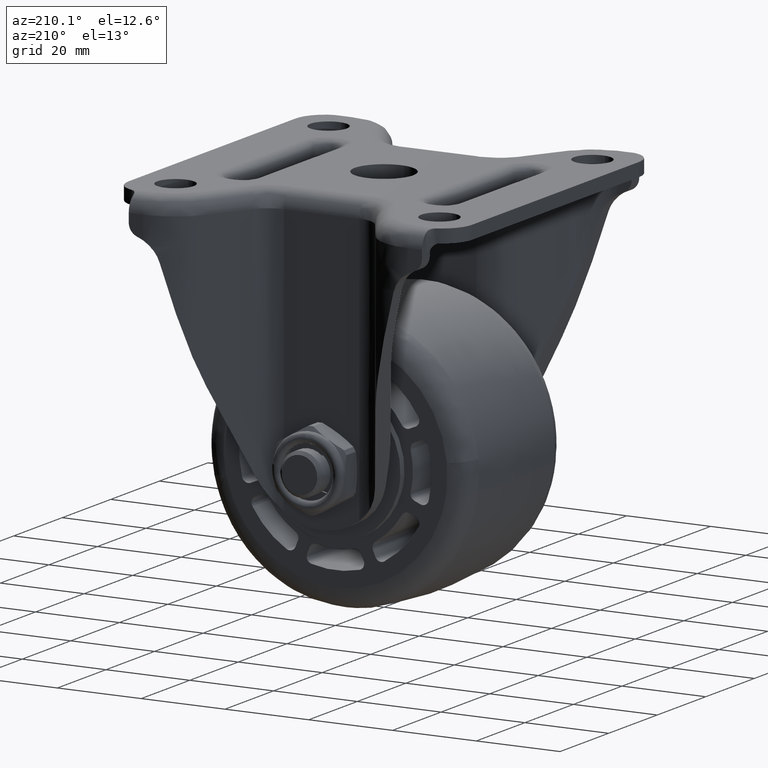
[diagram: clean part render]
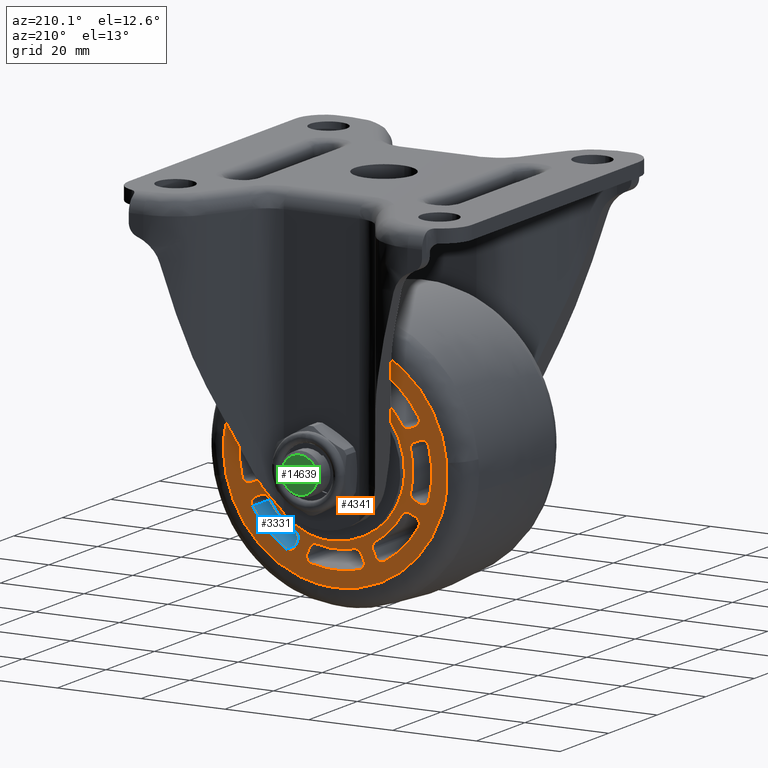
[diagram: same view with three faces highlighted in distinct colors, each labeled with its STEP entity id]
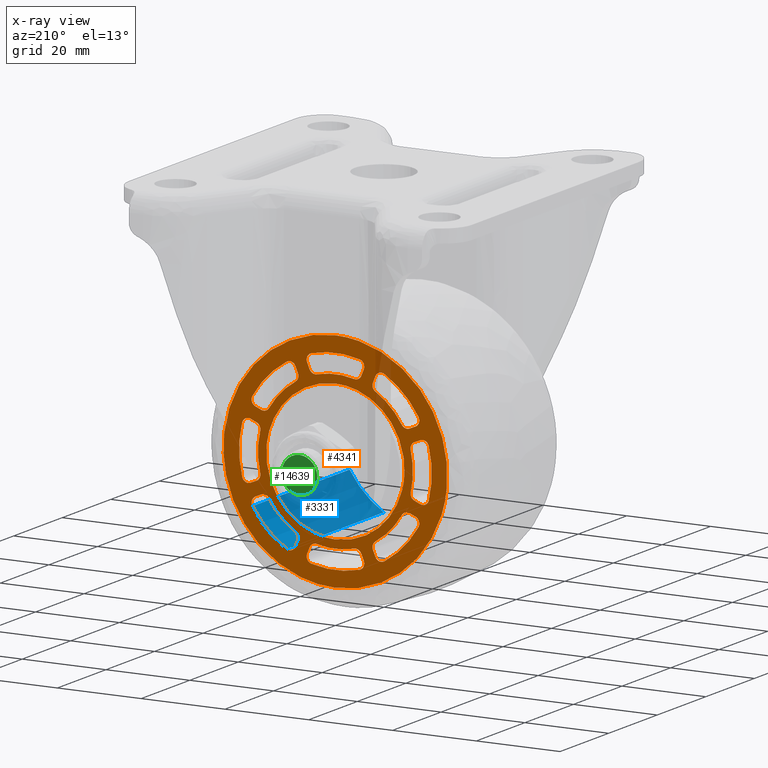
[diagram: x-ray of the same camera — body ghosted, the three highlighted faces saturated]
A machine part, auxiliary view with three faces highlighted in distinct colors.
The next image is the same camera in x-ray (body ghosted, the three faces saturated) — at least one of them is partly hidden behind the body in this view.
Their STEP definitions:

[orange] entity #4341 — the highlighted face is a freeform B-spline surface patch.
#271=CARTESIAN_POINT('',(16.384660335961740,20.0,-55.552461637232980));
#272=VERTEX_POINT('',#271);
#278=CARTESIAN_POINT('',(0.0,20.0,-74.000000000000014));
#279=VERTEX_POINT('',#278);
#280=CARTESIAN_POINT('',(16.384660335961744,20.000000000000004,-55.552461637232980));
#281=CARTESIAN_POINT('',(16.500000000000000,20.000000000000007,-56.522815420400264));
#282=CARTESIAN_POINT('',(16.500000000000000,20.0,-57.500000000000000));
#283=CARTESIAN_POINT('',(16.499999999999993,19.999999999999996,-74.000000000000014));
#284=CARTESIAN_POINT('',(0.0,20.0,-74.000000000000014));
#292=(BOUNDED_CURVE()B_SPLINE_CURVE(2,(#280,#281,#282,#283,#284),.UNSPECIFIED.,.F.,.U.)B_SPLINE_CURVE_WITH_KNOTS((3,2,3),(0.229562746949458,0.250000000000000,0.500000000000000),.UNSPECIFIED.)CURVE()GEOMETRIC_REPRESENTATION_ITEM()RATIONAL_B_SPLINE_CURVE((0.956027290130051,0.976056268681287,1.0,0.707106781186548,1.0))REPRESENTATION_ITEM(''));
#293=EDGE_CURVE('',#272,#279,#292,.T.);
#295=CARTESIAN_POINT('',(-16.469224859211689,20.0,-58.507289698447082));
#296=VERTEX_POINT('',#295);
#297=CARTESIAN_POINT('',(0.0,20.0,-74.000000000000014));
#298=CARTESIAN_POINT('',(-15.521660682930037,20.0,-74.0));
#299=CARTESIAN_POINT('',(-16.469224859211689,20.000000000000004,-58.507289698447067));
#307=(BOUNDED_CURVE()B_SPLINE_CURVE(2,(#297,#298,#299),.UNSPECIFIED.,.F.,.U.)B_SPLINE_CURVE_WITH_KNOTS((3,3),(0.500000000000000,0.739333079624144),.UNSPECIFIED.)CURVE()GEOMETRIC_REPRESENTATION_ITEM()RATIONAL_B_SPLINE_CURVE((1.0,0.719603855761393,0.976072293245677))REPRESENTATION_ITEM(''));
#308=EDGE_CURVE('',#279,#296,#307,.T.);
#386=CARTESIAN_POINT('',(0.0,20.0,-41.0));
#387=VERTEX_POINT('',#386);
#388=CARTESIAN_POINT('',(-16.469224859211689,20.000000000000004,-58.507289698447067));
#389=CARTESIAN_POINT('',(-16.500000000000000,20.0,-58.004114976780698));
#390=CARTESIAN_POINT('',(-16.500000000000000,20.0,-57.500000000000000));
#391=CARTESIAN_POINT('',(-16.499999999999993,19.999999999999996,-41.0));
#392=CARTESIAN_POINT('',(0.0,20.0,-41.0));
#400=(BOUNDED_CURVE()B_SPLINE_CURVE(2,(#388,#389,#390,#391,#392),.UNSPECIFIED.,.F.,.U.)B_SPLINE_CURVE_WITH_KNOTS((3,2,3),(0.739333079624144,0.750000000000000,1.0),.UNSPECIFIED.)CURVE()GEOMETRIC_REPRESENTATION_ITEM()RATIONAL_B_SPLINE_CURVE((0.976072293245677,0.987502925425155,1.0,0.707106781186548,1.0))REPRESENTATION_ITEM(''));
#401=EDGE_CURVE('',#296,#387,#400,.T.);
#403=CARTESIAN_POINT('',(0.0,20.0,-41.0));
#404=CARTESIAN_POINT('',(14.654903555551396,20.0,-41.0));
#405=CARTESIAN_POINT('',(16.384660335961748,19.999999999999996,-55.552461637232980));
#413=(BOUNDED_CURVE()B_SPLINE_CURVE(2,(#403,#404,#405),.UNSPECIFIED.,.F.,.U.)B_SPLINE_CURVE_WITH_KNOTS((3,3),(0.0,0.229562746949458),.UNSPECIFIED.)CURVE()GEOMETRIC_REPRESENTATION_ITEM()RATIONAL_B_SPLINE_CURVE((1.0,0.731050512505261,0.956027290130051))REPRESENTATION_ITEM(''));
#414=EDGE_CURVE('',#387,#272,#413,.T.);
#633=CARTESIAN_POINT('',(26.099642444681489,20.0,-63.233795155336438));
#634=VERTEX_POINT('',#633);
#635=CARTESIAN_POINT('',(0.0,20.0,-84.222046000000248));
#636=VERTEX_POINT('',#635);
#637=CARTESIAN_POINT('',(26.099642444681489,20.000000000000007,-63.233795155336445));
#638=CARTESIAN_POINT('',(21.488761993979644,20.000000000000007,-84.222046000000248));
#639=CARTESIAN_POINT('',(0.0,20.0,-84.222046000000248));
#647=(BOUNDED_CURVE()B_SPLINE_CURVE(2,(#637,#638,#639),.UNSPECIFIED.,.F.,.U.)B_SPLINE_CURVE_WITH_KNOTS((3,3),(0.286726879782087,0.500000000000000),.UNSPECIFIED.)CURVE()GEOMETRIC_REPRESENTATION_ITEM()RATIONAL_B_SPLINE_CURVE((0.926585904682078,0.750134997331948,1.0))REPRESENTATION_ITEM(''));
#648=EDGE_CURVE('',#634,#636,#647,.T.);
#712=CARTESIAN_POINT('',(-26.587126847215149,20.0,-54.818129638321437));
#713=VERTEX_POINT('',#712);
#727=CARTESIAN_POINT('',(0.0,20.0,-84.222046000000248));
#728=CARTESIAN_POINT('',(-26.722046000000244,19.999999999999996,-84.222046000000248));
#729=CARTESIAN_POINT('',(-26.722046000000251,20.0,-57.500000000000000));
#730=CARTESIAN_POINT('',(-26.722046000000251,19.999999999999996,-56.155671072178549));
#731=CARTESIAN_POINT('',(-26.587126847215149,20.000000000000004,-54.818129638321444));
#739=(BOUNDED_CURVE()B_SPLINE_CURVE(2,(#727,#728,#729,#730,#731),.UNSPECIFIED.,.F.,.U.)B_SPLINE_CURVE_WITH_KNOTS((3,2,3),(0.500000000000000,0.750000000000000,0.767423441087364),.UNSPECIFIED.)CURVE()GEOMETRIC_REPRESENTATION_ITEM()RATIONAL_B_SPLINE_CURVE((1.0,0.707106781186548,1.0,0.979587169028461,0.962019632119794))REPRESENTATION_ITEM(''));
#740=EDGE_CURVE('',#636,#713,#739,.T.);
#774=CARTESIAN_POINT('',(0.0,20.0,-30.777953999999749));
#775=VERTEX_POINT('',#774);
#776=CARTESIAN_POINT('',(0.0,20.0,-30.777953999999749));
#777=CARTESIAN_POINT('',(26.722046000000244,19.999999999999996,-30.777953999999749));
#778=CARTESIAN_POINT('',(26.722046000000251,20.0,-57.500000000000000));
#779=CARTESIAN_POINT('',(26.722046000000251,20.000000000000004,-60.400678535763397));
#780=CARTESIAN_POINT('',(26.099642444681489,20.000000000000007,-63.233795155336445));
#788=(BOUNDED_CURVE()B_SPLINE_CURVE(2,(#776,#777,#778,#779,#780),.UNSPECIFIED.,.F.,.U.)B_SPLINE_CURVE_WITH_KNOTS((3,2,3),(0.0,0.250000000000000,0.286726879782087),.UNSPECIFIED.)CURVE()GEOMETRIC_REPRESENTATION_ITEM()RATIONAL_B_SPLINE_CURVE((1.0,0.707106781186548,1.0,0.956971783854600,0.926585904682078))REPRESENTATION_ITEM(''));
#789=EDGE_CURVE('',#775,#634,#788,.T.);
#791=CARTESIAN_POINT('',(-26.587126847215146,20.000000000000004,-54.818129638321444));
#792=CARTESIAN_POINT('',(-24.162170024512978,20.0,-30.777953999999756));
#793=CARTESIAN_POINT('',(0.0,20.0,-30.777953999999749));
#801=(BOUNDED_CURVE()B_SPLINE_CURVE(2,(#791,#792,#793),.UNSPECIFIED.,.F.,.U.)B_SPLINE_CURVE_WITH_KNOTS((3,3),(0.767423441087364,1.0),.UNSPECIFIED.)CURVE()GEOMETRIC_REPRESENTATION_ITEM()RATIONAL_B_SPLINE_CURVE((0.962019632119795,0.727519612158085,1.0))REPRESENTATION_ITEM(''));
#802=EDGE_CURVE('',#713,#775,#801,.T.);
#1201=CARTESIAN_POINT('',(4.435790145815879,20.0,-39.539661312150102));
#1202=VERTEX_POINT('',#1201);
#1208=CARTESIAN_POINT('',(-4.435777889602595,20.0,-39.539663742464803));
#1209=VERTEX_POINT('',#1208);
#1210=CARTESIAN_POINT('',(4.435790145815879,20.0,-39.539661312150102));
#1211=CARTESIAN_POINT('',(0.000005493997155,20.0,-38.444127603049665));
#1212=CARTESIAN_POINT('',(-4.435777889602595,20.0,-39.539663742464803));
#1220=(BOUNDED_CURVE()B_SPLINE_CURVE(2,(#1210,#1211,#1212),.UNSPECIFIED.,.F.,.U.)CURVE()GEOMETRIC_REPRESENTATION_ITEM()QUASI_UNIFORM_CURVE()RATIONAL_B_SPLINE_CURVE((1.0,0.970829195614133,1.0))REPRESENTATION_ITEM(''));
#1221=EDGE_CURVE('',#1202,#1209,#1220,.T.);
#1246=CARTESIAN_POINT('',(-6.181254902524699,20.0,-38.657443913442243));
#1247=VERTEX_POINT('',#1246);
#1248=CARTESIAN_POINT('',(-6.181254902524702,20.0,-38.657443913442243));
#1249=CARTESIAN_POINT('',(-5.687750636795087,20.0,-39.848870957464307));
#1250=CARTESIAN_POINT('',(-4.435777889602587,20.0,-39.539663742464832));
#1258=(BOUNDED_CURVE()B_SPLINE_CURVE(2,(#1248,#1249,#1250),.UNSPECIFIED.,.F.,.U.)CURVE()GEOMETRIC_REPRESENTATION_ITEM()QUASI_UNIFORM_CURVE()RATIONAL_B_SPLINE_CURVE((1.0,0.758287410377991,1.0))REPRESENTATION_ITEM(''));
#1259=EDGE_CURVE('',#1247,#1209,#1258,.T.);
#1290=CARTESIAN_POINT('',(-6.761381499999930,20.0,-37.256881999999997));
#1291=VERTEX_POINT('',#1290);
#1292=CARTESIAN_POINT('',(-6.761381499999930,20.0,-37.256881999999997));
#1293=CARTESIAN_POINT('',(-6.181254902524699,20.0,-38.657443913442243));
#1294=QUASI_UNIFORM_CURVE('',1,(#1292,#1293),.UNSPECIFIED.,.F.,.U.);
#1295=EDGE_CURVE('',#1291,#1247,#1294,.T.);
#1327=CARTESIAN_POINT('',(-5.750593826880150,20.0,-35.230499093193799));
#1328=VERTEX_POINT('',#1327);
#1329=CARTESIAN_POINT('',(-5.750593826880150,20.0,-35.230499093193799));
#1330=CARTESIAN_POINT('',(-6.412634886584313,20.0,-35.401452938179538));
#1331=CARTESIAN_POINT('',(-6.717839189040205,20.0,-36.013313171567077));
#1332=CARTESIAN_POINT('',(-7.023043491496095,20.0,-36.625173404954630));
#1333=CARTESIAN_POINT('',(-6.761381499999930,20.0,-37.256881999999997));
#1341=(BOUNDED_CURVE()B_SPLINE_CURVE(2,(#1329,#1330,#1331,#1332,#1333),.UNSPECIFIED.,.F.,.U.)B_SPLINE_CURVE_WITH_KNOTS((3,2,3),(0.0,0.500000000000000,1.0),.UNSPECIFIED.)CURVE()GEOMETRIC_REPRESENTATION_ITEM()RATIONAL_B_SPLINE_CURVE((1.0,0.909923008889794,1.0,0.909923008889794,1.0))REPRESENTATION_ITEM(''));
#1342=EDGE_CURVE('',#1328,#1291,#1341,.T.);
#1384=CARTESIAN_POINT('',(5.750621474355510,20.0,-35.230506179751750));
#1385=VERTEX_POINT('',#1384);
#1386=CARTESIAN_POINT('',(5.750621474355510,20.0,-35.230506179751750));
#1387=CARTESIAN_POINT('',(0.000014738711493,20.000000000000004,-33.745534780051472));
#1388=CARTESIAN_POINT('',(-5.750593826880172,20.0,-35.230499093193679));
#1396=(BOUNDED_CURVE()B_SPLINE_CURVE(2,(#1386,#1387,#1388),.UNSPECIFIED.,.F.,.U.)CURVE()GEOMETRIC_REPRESENTATION_ITEM()QUASI_UNIFORM_CURVE()RATIONAL_B_SPLINE_CURVE((1.0,0.968239014729770,1.0))REPRESENTATION_ITEM(''));
#1397=EDGE_CURVE('',#1385,#1328,#1396,.T.);
#1437=CARTESIAN_POINT('',(6.761400000000000,20.0,-37.256893000000048));
#1438=VERTEX_POINT('',#1437);
#1439=CARTESIAN_POINT('',(6.761400000000000,20.0,-37.256893000000048));
#1440=CARTESIAN_POINT('',(7.023063839995741,19.999999999999996,-36.625185328955475));
#1441=CARTESIAN_POINT('',(6.717862347409277,20.0,-36.013324009777790));
#1442=CARTESIAN_POINT('',(6.412660854822814,19.999999999999996,-35.401462690600098));
#1443=CARTESIAN_POINT('',(5.750621474355510,20.0,-35.230506179751750));
#1451=(BOUNDED_CURVE()B_SPLINE_CURVE(2,(#1439,#1440,#1441,#1442,#1443),.UNSPECIFIED.,.F.,.U.)B_SPLINE_CURVE_WITH_KNOTS((3,2,3),(0.0,0.500000000000000,1.0),.UNSPECIFIED.)CURVE()GEOMETRIC_REPRESENTATION_ITEM()RATIONAL_B_SPLINE_CURVE((1.0,0.909923080169825,1.0,0.909923080169825,1.0))REPRESENTATION_ITEM(''));
#1452=EDGE_CURVE('',#1438,#1385,#1451,.T.);
#1485=CARTESIAN_POINT('',(6.181271000000081,20.0,-38.657443999999998));
#1486=VERTEX_POINT('',#1485);
#1487=CARTESIAN_POINT('',(6.181271000000081,20.0,-38.657443999999998));
#1488=CARTESIAN_POINT('',(6.761400000000000,20.0,-37.256893000000048));
#1489=QUASI_UNIFORM_CURVE('',1,(#1487,#1488),.UNSPECIFIED.,.F.,.U.);
#1490=EDGE_CURVE('',#1486,#1438,#1489,.T.);
#1522=CARTESIAN_POINT('',(4.435790145815879,20.0,-39.539661312150102));
#1523=CARTESIAN_POINT('',(5.687765794184647,20.0,-39.848872658180348));
#1524=CARTESIAN_POINT('',(6.181271000000081,20.0,-38.657443999999998));
#1532=(BOUNDED_CURVE()B_SPLINE_CURVE(2,(#1522,#1523,#1524),.UNSPECIFIED.,.F.,.U.)CURVE()GEOMETRIC_REPRESENTATION_ITEM()QUASI_UNIFORM_CURVE()RATIONAL_B_SPLINE_CURVE((1.0,0.758286678748823,1.0))REPRESENTATION_ITEM(''));
#1533=EDGE_CURVE('',#1202,#1486,#1532,.T.);
#1583=CARTESIAN_POINT('',(-9.563299986558970,20.0,-41.663545429387412));
#1584=VERTEX_POINT('',#1583);
#1590=CARTESIAN_POINT('',(-15.836444185669150,20.0,-47.936693065481712));
#1591=VERTEX_POINT('',#1590);
#1592=CARTESIAN_POINT('',(-9.563299986558970,20.0,-41.663545429387412));
#1593=CARTESIAN_POINT('',(-13.474532708466548,20.000000000000004,-44.025459521848283));
#1594=CARTESIAN_POINT('',(-15.836444185669150,20.0,-47.936693065481712));
#1602=(BOUNDED_CURVE()B_SPLINE_CURVE(2,(#1592,#1593,#1594),.UNSPECIFIED.,.F.,.U.)CURVE()GEOMETRIC_REPRESENTATION_ITEM()QUASI_UNIFORM_CURVE()RATIONAL_B_SPLINE_CURVE((1.0,0.970829195614133,1.0))REPRESENTATION_ITEM(''));
#1603=EDGE_CURVE('',#1584,#1591,#1602,.T.);
#1628=CARTESIAN_POINT('',(-17.694506441510750,20.0,-48.547108074124999));
#1629=VERTEX_POINT('',#1628);
#1630=CARTESIAN_POINT('',(-17.694506441510761,20.0,-48.547108074125028));
#1631=CARTESIAN_POINT('',(-16.503080086551822,20.0,-49.040614003400194));
#1632=CARTESIAN_POINT('',(-15.836444185669169,20.0,-47.936693065481691));
#1640=(BOUNDED_CURVE()B_SPLINE_CURVE(2,(#1630,#1631,#1632),.UNSPECIFIED.,.F.,.U.)CURVE()GEOMETRIC_REPRESENTATION_ITEM()QUASI_UNIFORM_CURVE()RATIONAL_B_SPLINE_CURVE((1.0,0.758287410377988,1.0))REPRESENTATION_ITEM(''));
#1641=EDGE_CURVE('',#1629,#1591,#1640,.T.);
#1672=CARTESIAN_POINT('',(-19.095064718998749,20.0,-47.966972698679797));
#1673=VERTEX_POINT('',#1672);
#1674=CARTESIAN_POINT('',(-19.095064718998749,20.0,-47.966972698679797));
#1675=CARTESIAN_POINT('',(-17.694506441510750,20.0,-48.547108074124999));
#1676=QUASI_UNIFORM_CURVE('',1,(#1674,#1675),.UNSPECIFIED.,.F.,.U.);
#1677=EDGE_CURVE('',#1673,#1629,#1676,.T.);
#1709=CARTESIAN_POINT('',(-19.813198995679201,20.0,-45.819368785993902));
#1710=VERTEX_POINT('',#1709);
#1711=CARTESIAN_POINT('',(-19.813198995679201,20.0,-45.819368785993902));
#1712=CARTESIAN_POINT('',(-20.160450095360584,19.999999999999996,-46.408385131793970));
#1713=CARTESIAN_POINT('',(-19.943611607107730,20.0,-47.056847683874537));
#1714=CARTESIAN_POINT('',(-19.726773118854872,19.999999999999996,-47.705310235955110));
#1715=CARTESIAN_POINT('',(-19.095064718998749,20.0,-47.966972698679797));
#1723=(BOUNDED_CURVE()B_SPLINE_CURVE(2,(#1711,#1712,#1713,#1714,#1715),.UNSPECIFIED.,.F.,.U.)B_SPLINE_CURVE_WITH_KNOTS((3,2,3),(0.0,0.500000000000000,1.0),.UNSPECIFIED.)CURVE()GEOMETRIC_REPRESENTATION_ITEM()RATIONAL_B_SPLINE_CURVE((1.0,0.909923008889797,1.0,0.909923008889797,1.0))REPRESENTATION_ITEM(''));
#1724=EDGE_CURVE('',#1710,#1673,#1723,.T.);
#1766=CARTESIAN_POINT('',(-11.680606653335740,20.0,-37.686786465556850));
#1767=VERTEX_POINT('',#1766);
#1768=CARTESIAN_POINT('',(-11.680606653335740,20.0,-37.686786465556850));
#1769=CARTESIAN_POINT('',(-16.796933018642836,20.0,-40.703046137671620));
#1770=CARTESIAN_POINT('',(-19.813198995679251,20.0,-45.819368785993852));
#1778=(BOUNDED_CURVE()B_SPLINE_CURVE(2,(#1768,#1769,#1770),.UNSPECIFIED.,.F.,.U.)CURVE()GEOMETRIC_REPRESENTATION_ITEM()QUASI_UNIFORM_CURVE()RATIONAL_B_SPLINE_CURVE((1.0,0.968239014729770,1.0))REPRESENTATION_ITEM(''));
#1779=EDGE_CURVE('',#1767,#1710,#1778,.T.);
#1819=CARTESIAN_POINT('',(-9.533006441670191,20.0,-38.404929977700547));
#1820=VERTEX_POINT('',#1819);
#1821=CARTESIAN_POINT('',(-9.533006441670191,20.0,-38.404929977700547));
#1822=CARTESIAN_POINT('',(-9.794666943941046,20.0,-37.773220924125077));
#1823=CARTESIAN_POINT('',(-10.443128276913470,20.0,-37.556379681224932));
#1824=CARTESIAN_POINT('',(-11.091589609885899,20.0,-37.339538438324766));
#1825=CARTESIAN_POINT('',(-11.680606653335740,20.0,-37.686786465556850));
#1833=(BOUNDED_CURVE()B_SPLINE_CURVE(2,(#1821,#1822,#1823,#1824,#1825),.UNSPECIFIED.,.F.,.U.)B_SPLINE_CURVE_WITH_KNOTS((3,2,3),(0.0,0.500000000000000,1.0),.UNSPECIFIED.)CURVE()GEOMETRIC_REPRESENTATION_ITEM()RATIONAL_B_SPLINE_CURVE((1.0,0.909923080169826,1.0,0.909923080169826,1.0))REPRESENTATION_ITEM(''));
#1834=EDGE_CURVE('',#1820,#1767,#1833,.T.);
#1867=CARTESIAN_POINT('',(-8.952880482035539,20.0,-39.805482237061000));
#1868=VERTEX_POINT('',#1867);
#1869=CARTESIAN_POINT('',(-8.952880482035539,20.0,-39.805482237061000));
#1870=CARTESIAN_POINT('',(-9.533006441670191,20.0,-38.404929977700547));
#1871=QUASI_UNIFORM_CURVE('',1,(#1869,#1870),.UNSPECIFIED.,.F.,.U.);
#1872=EDGE_CURVE('',#1868,#1820,#1871,.T.);
#1904=CARTESIAN_POINT('',(-9.563299986558970,20.0,-41.663545429387412));
#1905=CARTESIAN_POINT('',(-8.459374076119209,20.000000000000004,-40.996910398143250));
#1906=CARTESIAN_POINT('',(-8.952880482035539,20.0,-39.805482237061000));
#1914=(BOUNDED_CURVE()B_SPLINE_CURVE(2,(#1904,#1905,#1906),.UNSPECIFIED.,.F.,.U.)CURVE()GEOMETRIC_REPRESENTATION_ITEM()QUASI_UNIFORM_CURVE()RATIONAL_B_SPLINE_CURVE((1.0,0.758286678748829,1.0))REPRESENTATION_ITEM(''));
#1915=EDGE_CURVE('',#1584,#1868,#1914,.T.);
#1965=CARTESIAN_POINT('',(-17.960338687850051,20.0,-53.064209854184298));
#1966=VERTEX_POINT('',#1965);
#1972=CARTESIAN_POINT('',(-17.960336257535300,20.0,-61.935777889602697));
#1973=VERTEX_POINT('',#1972);
#1974=CARTESIAN_POINT('',(-17.960338687850051,20.0,-53.064209854184298));
#1975=CARTESIAN_POINT('',(-19.055872396950445,20.000000000000004,-57.499994506002992));
#1976=CARTESIAN_POINT('',(-17.960336257535300,20.0,-61.935777889602697));
#1984=(BOUNDED_CURVE()B_SPLINE_CURVE(2,(#1974,#1975,#1976),.UNSPECIFIED.,.F.,.U.)CURVE()GEOMETRIC_REPRESENTATION_ITEM()QUASI_UNIFORM_CURVE()RATIONAL_B_SPLINE_CURVE((1.0,0.970829195614134,1.0))REPRESENTATION_ITEM(''));
#1985=EDGE_CURVE('',#1966,#1973,#1984,.T.);
#2010=CARTESIAN_POINT('',(-18.842556086557899,20.0,-63.681254902524799));
#2011=VERTEX_POINT('',#2010);
#2012=CARTESIAN_POINT('',(-18.842556086557881,20.0,-63.681254902524842));
#2013=CARTESIAN_POINT('',(-17.651129042535839,20.0,-63.187750636795201));
#2014=CARTESIAN_POINT('',(-17.960336257535321,20.0,-61.935777889602711));
#2022=(BOUNDED_CURVE()B_SPLINE_CURVE(2,(#2012,#2013,#2014),.UNSPECIFIED.,.F.,.U.)CURVE()GEOMETRIC_REPRESENTATION_ITEM()QUASI_UNIFORM_CURVE()RATIONAL_B_SPLINE_CURVE((1.0,0.758287410377991,1.0))REPRESENTATION_ITEM(''));
#2023=EDGE_CURVE('',#2011,#1973,#2022,.T.);
#2054=CARTESIAN_POINT('',(-20.243118000000099,20.0,-64.261381500000098));
#2055=VERTEX_POINT('',#2054);
#2056=CARTESIAN_POINT('',(-20.243118000000099,20.0,-64.261381500000098));
#2057=CARTESIAN_POINT('',(-18.842556086557899,20.0,-63.681254902524799));
#2058=QUASI_UNIFORM_CURVE('',1,(#2056,#2057),.UNSPECIFIED.,.F.,.U.);
#2059=EDGE_CURVE('',#2055,#2011,#2058,.T.);
#2091=CARTESIAN_POINT('',(-22.269500906806350,20.0,-63.250593826880312));
#2092=VERTEX_POINT('',#2091);
#2093=CARTESIAN_POINT('',(-22.269500906806350,20.0,-63.250593826880312));
#2094=CARTESIAN_POINT('',(-22.098547061820600,20.0,-63.912634886584470));
#2095=CARTESIAN_POINT('',(-21.486686828433040,20.0,-64.217839189040362));
#2096=CARTESIAN_POINT('',(-20.874826595045484,20.0,-64.523043491496239));
#2097=CARTESIAN_POINT('',(-20.243118000000099,20.0,-64.261381500000098));
#2105=(BOUNDED_CURVE()B_SPLINE_CURVE(2,(#2093,#2094,#2095,#2096,#2097),.UNSPECIFIED.,.F.,.U.)B_SPLINE_CURVE_WITH_KNOTS((3,2,3),(0.0,0.500000000000000,1.0),.UNSPECIFIED.)CURVE()GEOMETRIC_REPRESENTATION_ITEM()RATIONAL_B_SPLINE_CURVE((1.0,0.909923008889796,1.0,0.909923008889796,1.0))REPRESENTATION_ITEM(''));
#2106=EDGE_CURVE('',#2092,#2055,#2105,.T.);
#2148=CARTESIAN_POINT('',(-22.269493820248350,20.0,-51.749378525644602));
#2149=VERTEX_POINT('',#2148);
#2150=CARTESIAN_POINT('',(-22.269493820248350,20.0,-51.749378525644602));
#2151=CARTESIAN_POINT('',(-23.754465219948543,19.999999999999996,-57.499985261288636));
#2152=CARTESIAN_POINT('',(-22.269500906806289,20.0,-63.250593826880291));
#2160=(BOUNDED_CURVE()B_SPLINE_CURVE(2,(#2150,#2151,#2152),.UNSPECIFIED.,.F.,.U.)CURVE()GEOMETRIC_REPRESENTATION_ITEM()QUASI_UNIFORM_CURVE()RATIONAL_B_SPLINE_CURVE((1.0,0.968239014729770,1.0))REPRESENTATION_ITEM(''));
#2161=EDGE_CURVE('',#2149,#2092,#2160,.T.);
#2201=CARTESIAN_POINT('',(-20.243107000000052,20.0,-50.738600000000012));
#2202=VERTEX_POINT('',#2201);
#2203=CARTESIAN_POINT('',(-20.243107000000052,20.0,-50.738600000000012));
#2204=CARTESIAN_POINT('',(-20.874814671044597,20.0,-50.476936160004335));
#2205=CARTESIAN_POINT('',(-21.486675990222270,20.0,-50.782137652590819));
#2206=CARTESIAN_POINT('',(-22.098537309399951,20.0,-51.087339145177317));
#2207=CARTESIAN_POINT('',(-22.269493820248350,20.0,-51.749378525644602));
#2215=(BOUNDED_CURVE()B_SPLINE_CURVE(2,(#2203,#2204,#2205,#2206,#2207),.UNSPECIFIED.,.F.,.U.)B_SPLINE_CURVE_WITH_KNOTS((3,2,3),(0.0,0.500000000000000,1.0),.UNSPECIFIED.)CURVE()GEOMETRIC_REPRESENTATION_ITEM()RATIONAL_B_SPLINE_CURVE((1.0,0.909923080169834,1.0,0.909923080169834,1.0))REPRESENTATION_ITEM(''));
#2216=EDGE_CURVE('',#2202,#2149,#2215,.T.);
#2249=CARTESIAN_POINT('',(-18.842556000000101,20.0,-51.318729000000097));
#2250=VERTEX_POINT('',#2249);
#2251=CARTESIAN_POINT('',(-18.842556000000101,20.0,-51.318729000000097));
#2252=CARTESIAN_POINT('',(-20.243107000000052,20.0,-50.738600000000012));
#2253=QUASI_UNIFORM_CURVE('',1,(#2251,#2252),.UNSPECIFIED.,.F.,.U.);
#2254=EDGE_CURVE('',#2250,#2202,#2253,.T.);
#2286=CARTESIAN_POINT('',(-17.960338687850051,20.0,-53.064209854184298));
#2287=CARTESIAN_POINT('',(-17.651127341819667,20.0,-51.812234205815464));
#2288=CARTESIAN_POINT('',(-18.842556000000101,20.0,-51.318729000000097));
#2296=(BOUNDED_CURVE()B_SPLINE_CURVE(2,(#2286,#2287,#2288),.UNSPECIFIED.,.F.,.U.)CURVE()GEOMETRIC_REPRESENTATION_ITEM()QUASI_UNIFORM_CURVE()RATIONAL_B_SPLINE_CURVE((1.0,0.758286678748792,1.0))REPRESENTATION_ITEM(''));
#2297=EDGE_CURVE('',#1966,#2250,#2296,.T.);
#2347=CARTESIAN_POINT('',(-15.836454570612700,20.0,-67.063299986559088));
#2348=VERTEX_POINT('',#2347);
#2354=CARTESIAN_POINT('',(-9.563306934518479,20.0,-73.336444185669293));
#2355=VERTEX_POINT('',#2354);
#2356=CARTESIAN_POINT('',(-15.836454570612700,20.0,-67.063299986559088));
#2357=CARTESIAN_POINT('',(-13.474540478151839,20.000000000000007,-70.974532708466683));
#2358=CARTESIAN_POINT('',(-9.563306934518479,20.0,-73.336444185669293));
#2366=(BOUNDED_CURVE()B_SPLINE_CURVE(2,(#2356,#2357,#2358),.UNSPECIFIED.,.F.,.U.)CURVE()GEOMETRIC_REPRESENTATION_ITEM()QUASI_UNIFORM_CURVE()RATIONAL_B_SPLINE_CURVE((1.0,0.970829195614133,1.0))REPRESENTATION_ITEM(''));
#2367=EDGE_CURVE('',#2348,#2355,#2366,.T.);
#2392=CARTESIAN_POINT('',(-8.952891925875131,20.0,-75.194506441510910));
#2393=VERTEX_POINT('',#2392);
#2394=CARTESIAN_POINT('',(-8.952891925875132,20.0,-75.194506441510910));
#2395=CARTESIAN_POINT('',(-8.459385996599975,20.000000000000004,-74.003080086551975));
#2396=CARTESIAN_POINT('',(-9.563306934518485,20.0,-73.336444185669308));
#2404=(BOUNDED_CURVE()B_SPLINE_CURVE(2,(#2394,#2395,#2396),.UNSPECIFIED.,.F.,.U.)CURVE()GEOMETRIC_REPRESENTATION_ITEM()QUASI_UNIFORM_CURVE()RATIONAL_B_SPLINE_CURVE((1.0,0.758287410377987,1.0))REPRESENTATION_ITEM(''));
#2405=EDGE_CURVE('',#2393,#2355,#2404,.T.);
#2436=CARTESIAN_POINT('',(-9.533027301320320,20.0,-76.595064718998913));
#2437=VERTEX_POINT('',#2436);
#2438=CARTESIAN_POINT('',(-9.533027301320320,20.0,-76.595064718998913));
#2439=CARTESIAN_POINT('',(-8.952891925875131,20.0,-75.194506441510910));
#2440=QUASI_UNIFORM_CURVE('',1,(#2438,#2439),.UNSPECIFIED.,.F.,.U.);
#2441=EDGE_CURVE('',#2437,#2393,#2440,.T.);
#2473=CARTESIAN_POINT('',(-11.680631214006260,20.0,-77.313198995679301));
#2474=VERTEX_POINT('',#2473);
#2475=CARTESIAN_POINT('',(-11.680631214006260,20.0,-77.313198995679301));
#2476=CARTESIAN_POINT('',(-11.091614868206195,20.000000000000004,-77.660450095360744));
#2477=CARTESIAN_POINT('',(-10.443152316125600,20.0,-77.443611607107883));
#2478=CARTESIAN_POINT('',(-9.794689764045010,20.000000000000004,-77.226773118855007));
#2479=CARTESIAN_POINT('',(-9.533027301320320,20.0,-76.595064718998913));
#2487=(BOUNDED_CURVE()B_SPLINE_CURVE(2,(#2475,#2476,#2477,#2478,#2479),.UNSPECIFIED.,.F.,.U.)B_SPLINE_CURVE_WITH_KNOTS((3,2,3),(0.0,0.500000000000000,1.0),.UNSPECIFIED.)CURVE()GEOMETRIC_REPRESENTATION_ITEM()RATIONAL_B_SPLINE_CURVE((1.0,0.909923008889793,1.0,0.909923008889793,1.0))REPRESENTATION_ITEM(''));
#2488=EDGE_CURVE('',#2474,#2437,#2487,.T.);
#2530=CARTESIAN_POINT('',(-19.813213534443300,20.0,-69.180606653335900));
#2531=VERTEX_POINT('',#2530);
#2532=CARTESIAN_POINT('',(-19.813213534443300,20.0,-69.180606653335900));
#2533=CARTESIAN_POINT('',(-16.796953862328362,20.000000000000004,-74.296933018642818));
#2534=CARTESIAN_POINT('',(-11.680631214006210,20.0,-77.313198995679201));
#2542=(BOUNDED_CURVE()B_SPLINE_CURVE(2,(#2532,#2533,#2534),.UNSPECIFIED.,.F.,.U.)CURVE()GEOMETRIC_REPRESENTATION_ITEM()QUASI_UNIFORM_CURVE()RATIONAL_B_SPLINE_CURVE((1.0,0.968239014729771,1.0))REPRESENTATION_ITEM(''));
#2543=EDGE_CURVE('',#2531,#2474,#2542,.T.);
#2583=CARTESIAN_POINT('',(-19.095070022299598,20.0,-67.033006441670310));
#2584=VERTEX_POINT('',#2583);
#2585=CARTESIAN_POINT('',(-19.095070022299598,20.0,-67.033006441670310));
#2586=CARTESIAN_POINT('',(-19.726779075875076,20.0,-67.294666943941181));
#2587=CARTESIAN_POINT('',(-19.943620318775238,20.0,-67.943128276913612));
#2588=CARTESIAN_POINT('',(-20.160461561675401,20.0,-68.591589609886043));
#2589=CARTESIAN_POINT('',(-19.813213534443300,20.0,-69.180606653335900));
#2597=(BOUNDED_CURVE()B_SPLINE_CURVE(2,(#2585,#2586,#2587,#2588,#2589),.UNSPECIFIED.,.F.,.U.)B_SPLINE_CURVE_WITH_KNOTS((3,2,3),(0.0,0.500000000000000,1.0),.UNSPECIFIED.)CURVE()GEOMETRIC_REPRESENTATION_ITEM()RATIONAL_B_SPLINE_CURVE((1.0,0.909923080169825,1.0,0.909923080169825,1.0))REPRESENTATION_ITEM(''));
#2598=EDGE_CURVE('',#2584,#2531,#2597,.T.);
#2631=CARTESIAN_POINT('',(-17.694517762939149,20.0,-66.452880482035695));
#2632=VERTEX_POINT('',#2631);
#2633=CARTESIAN_POINT('',(-17.694517762939149,20.0,-66.452880482035695));
#2634=CARTESIAN_POINT('',(-19.095070022299598,20.0,-67.033006441670310));
#2635=QUASI_UNIFORM_CURVE('',1,(#2633,#2634),.UNSPECIFIED.,.F.,.U.);
#2636=EDGE_CURVE('',#2632,#2584,#2635,.T.);
#2668=CARTESIAN_POINT('',(-15.836454570612700,20.0,-67.063299986559088));
#2669=CARTESIAN_POINT('',(-16.503089601856857,19.999999999999996,-65.959374076119275));
#2670=CARTESIAN_POINT('',(-17.694517762939149,20.0,-66.452880482035695));
#2678=(BOUNDED_CURVE()B_SPLINE_CURVE(2,(#2668,#2669,#2670),.UNSPECIFIED.,.F.,.U.)CURVE()GEOMETRIC_REPRESENTATION_ITEM()QUASI_UNIFORM_CURVE()RATIONAL_B_SPLINE_CURVE((1.0,0.758286678748810,1.0))REPRESENTATION_ITEM(''));
#2679=EDGE_CURVE('',#2348,#2632,#2678,.T.);
#2729=CARTESIAN_POINT('',(-4.435790145815874,20.0,-75.460338687850097));
#2730=VERTEX_POINT('',#2729);
#2736=CARTESIAN_POINT('',(4.435777889602600,20.0,-75.460336257535403));
#2737=VERTEX_POINT('',#2736);
#2738=CARTESIAN_POINT('',(-4.435790145815874,20.0,-75.460338687850097));
#2739=CARTESIAN_POINT('',(-0.000005493997152,20.0,-76.555872396950534));
#2740=CARTESIAN_POINT('',(4.435777889602600,20.0,-75.460336257535403));
#2748=(BOUNDED_CURVE()B_SPLINE_CURVE(2,(#2738,#2739,#2740),.UNSPECIFIED.,.F.,.U.)CURVE()GEOMETRIC_REPRESENTATION_ITEM()QUASI_UNIFORM_CURVE()RATIONAL_B_SPLINE_CURVE((1.0,0.970829195614133,1.0))REPRESENTATION_ITEM(''));
#2749=EDGE_CURVE('',#2730,#2737,#2748,.T.);
#2774=CARTESIAN_POINT('',(6.181254902524709,20.0,-76.342556086558005));
#2775=VERTEX_POINT('',#2774);
#2776=CARTESIAN_POINT('',(6.181254902524701,20.0,-76.342556086558005));
#2777=CARTESIAN_POINT('',(5.687750636795090,20.000000000000004,-75.151129042535970));
#2778=CARTESIAN_POINT('',(4.435777889602605,20.0,-75.460336257535417));
#2786=(BOUNDED_CURVE()B_SPLINE_CURVE(2,(#2776,#2777,#2778),.UNSPECIFIED.,.F.,.U.)CURVE()GEOMETRIC_REPRESENTATION_ITEM()QUASI_UNIFORM_CURVE()RATIONAL_B_SPLINE_CURVE((1.0,0.758287410377996,1.0))REPRESENTATION_ITEM(''));
#2787=EDGE_CURVE('',#2775,#2737,#2786,.T.);
#2818=CARTESIAN_POINT('',(6.761381499999950,20.0,-77.743118000000194));
#2819=VERTEX_POINT('',#2818);
#2820=CARTESIAN_POINT('',(6.761381499999950,20.0,-77.743118000000194));
#2821=CARTESIAN_POINT('',(6.181254902524709,20.0,-76.342556086558005));
#2822=QUASI_UNIFORM_CURVE('',1,(#2820,#2821),.UNSPECIFIED.,.F.,.U.);
#2823=EDGE_CURVE('',#2819,#2775,#2822,.T.);
#2855=CARTESIAN_POINT('',(5.750593826880170,20.0,-79.769500906806400));
#2856=VERTEX_POINT('',#2855);
#2857=CARTESIAN_POINT('',(5.750593826880170,20.0,-79.769500906806400));
#2858=CARTESIAN_POINT('',(6.412634886584350,19.999999999999996,-79.598547061820653));
#2859=CARTESIAN_POINT('',(6.717839189040242,20.0,-78.986686828433108));
#2860=CARTESIAN_POINT('',(7.023043491496133,19.999999999999996,-78.374826595045562));
#2861=CARTESIAN_POINT('',(6.761381499999950,20.0,-77.743118000000194));
#2869=(BOUNDED_CURVE()B_SPLINE_CURVE(2,(#2857,#2858,#2859,#2860,#2861),.UNSPECIFIED.,.F.,.U.)B_SPLINE_CURVE_WITH_KNOTS((3,2,3),(0.0,0.500000000000000,1.0),.UNSPECIFIED.)CURVE()GEOMETRIC_REPRESENTATION_ITEM()RATIONAL_B_SPLINE_CURVE((1.0,0.909923008889792,1.0,0.909923008889792,1.0))REPRESENTATION_ITEM(''));
#2870=EDGE_CURVE('',#2856,#2819,#2869,.T.);
#2912=CARTESIAN_POINT('',(-5.750621474355500,20.0,-79.769493820248485));
#2913=VERTEX_POINT('',#2912);
#2914=CARTESIAN_POINT('',(-5.750621474355500,20.0,-79.769493820248485));
#2915=CARTESIAN_POINT('',(-0.000014738711478,19.999999999999996,-81.254465219948528));
#2916=CARTESIAN_POINT('',(5.750593826880144,20.0,-79.769500906806343));
#2924=(BOUNDED_CURVE()B_SPLINE_CURVE(2,(#2914,#2915,#2916),.UNSPECIFIED.,.F.,.U.)CURVE()GEOMETRIC_REPRESENTATION_ITEM()QUASI_UNIFORM_CURVE()RATIONAL_B_SPLINE_CURVE((1.0,0.968239014729771,1.0))REPRESENTATION_ITEM(''));
#2925=EDGE_CURVE('',#2913,#2856,#2924,.T.);
#2965=CARTESIAN_POINT('',(-6.761400000000000,20.0,-77.743107000000109));
#2966=VERTEX_POINT('',#2965);
#2967=CARTESIAN_POINT('',(-6.761400000000000,20.0,-77.743107000000109));
#2968=CARTESIAN_POINT('',(-7.023063839995796,20.0,-78.374814671044660));
#2969=CARTESIAN_POINT('',(-6.717862347409325,20.0,-78.986675990222409));
#2970=CARTESIAN_POINT('',(-6.412660854822853,20.0,-79.598537309400143));
#2971=CARTESIAN_POINT('',(-5.750621474355500,20.0,-79.769493820248485));
#2979=(BOUNDED_CURVE()B_SPLINE_CURVE(2,(#2967,#2968,#2969,#2970,#2971),.UNSPECIFIED.,.F.,.U.)B_SPLINE_CURVE_WITH_KNOTS((3,2,3),(0.0,0.500000000000000,1.0),.UNSPECIFIED.)CURVE()GEOMETRIC_REPRESENTATION_ITEM()RATIONAL_B_SPLINE_CURVE((1.0,0.909923080169816,1.0,0.909923080169816,1.0))REPRESENTATION_ITEM(''));
#2980=EDGE_CURVE('',#2966,#2913,#2979,.T.);
#3013=CARTESIAN_POINT('',(-6.181271000000071,20.0,-76.342556000000201));
#3014=VERTEX_POINT('',#3013);
#3015=CARTESIAN_POINT('',(-6.181271000000071,20.0,-76.342556000000201));
#3016=CARTESIAN_POINT('',(-6.761400000000000,20.0,-77.743107000000109));
#3017=QUASI_UNIFORM_CURVE('',1,(#3015,#3016),.UNSPECIFIED.,.F.,.U.);
#3018=EDGE_CURVE('',#3014,#2966,#3017,.T.);
#3050=CARTESIAN_POINT('',(-4.435790145815874,20.0,-75.460338687850097));
#3051=CARTESIAN_POINT('',(-5.687765794184767,20.0,-75.151127341819688));
#3052=CARTESIAN_POINT('',(-6.181271000000071,20.0,-76.342556000000201));
#3060=(BOUNDED_CURVE()B_SPLINE_CURVE(2,(#3050,#3051,#3052),.UNSPECIFIED.,.F.,.U.)CURVE()GEOMETRIC_REPRESENTATION_ITEM()QUASI_UNIFORM_CURVE()RATIONAL_B_SPLINE_CURVE((1.0,0.758286678748773,1.0))REPRESENTATION_ITEM(''));
#3061=EDGE_CURVE('',#2730,#3014,#3060,.T.);
#3111=CARTESIAN_POINT('',(9.563299986558981,20.0,-73.336454570612787));
#3112=VERTEX_POINT('',#3111);
#3118=CARTESIAN_POINT('',(15.836444185669150,20.0,-67.063306934518593));
#3119=VERTEX_POINT('',#3118);
#3120=CARTESIAN_POINT('',(9.563299986558981,20.0,-73.336454570612787));
#3121=CARTESIAN_POINT('',(13.474532708466548,20.000000000000004,-70.974540478151923));
#3122=CARTESIAN_POINT('',(15.836444185669150,20.0,-67.063306934518593));
#3130=(BOUNDED_CURVE()B_SPLINE_CURVE(2,(#3120,#3121,#3122),.UNSPECIFIED.,.F.,.U.)CURVE()GEOMETRIC_REPRESENTATION_ITEM()QUASI_UNIFORM_CURVE()RATIONAL_B_SPLINE_CURVE((1.0,0.970829195614134,1.0))REPRESENTATION_ITEM(''));
#3131=EDGE_CURVE('',#3112,#3119,#3130,.T.);
#3156=CARTESIAN_POINT('',(17.694506441510750,20.0,-66.452891925875207));
#3157=VERTEX_POINT('',#3156);
#3158=CARTESIAN_POINT('',(17.694506441510729,20.0,-66.452891925875264));
#3159=CARTESIAN_POINT('',(16.503080086551819,20.000000000000004,-65.959385996600147));
#3160=CARTESIAN_POINT('',(15.836444185669180,20.0,-67.063306934518607));
#3168=(BOUNDED_CURVE()B_SPLINE_CURVE(2,(#3158,#3159,#3160),.UNSPECIFIED.,.F.,.U.)CURVE()GEOMETRIC_REPRESENTATION_ITEM()QUASI_UNIFORM_CURVE()RATIONAL_B_SPLINE_CURVE((1.0,0.758287410377998,1.0))REPRESENTATION_ITEM(''));
#3169=EDGE_CURVE('',#3157,#3119,#3168,.T.);
#3200=CARTESIAN_POINT('',(19.095064718998749,20.0,-67.033027301320402));
#3201=VERTEX_POINT('',#3200);
#3202=CARTESIAN_POINT('',(19.095064718998749,20.0,-67.033027301320402));
#3203=CARTESIAN_POINT('',(17.694506441510750,20.0,-66.452891925875207));
#3204=QUASI_UNIFORM_CURVE('',1,(#3202,#3203),.UNSPECIFIED.,.F.,.U.);
#3205=EDGE_CURVE('',#3201,#3157,#3204,.T.);
#3237=CARTESIAN_POINT('',(19.813198995679201,20.0,-69.180631214006382));
#3238=VERTEX_POINT('',#3237);
#3239=CARTESIAN_POINT('',(19.813198995679201,20.0,-69.180631214006382));
#3240=CARTESIAN_POINT('',(20.160450095360623,20.000000000000004,-68.591614868206307));
#3241=CARTESIAN_POINT('',(19.943611607107758,20.0,-67.943152316125705));
#3242=CARTESIAN_POINT('',(19.726773118854894,20.000000000000004,-67.294689764045103));
#3243=CARTESIAN_POINT('',(19.095064718998749,20.0,-67.033027301320402));
#3251=(BOUNDED_CURVE()B_SPLINE_CURVE(2,(#3239,#3240,#3241,#3242,#3243),.UNSPECIFIED.,.F.,.U.)B_SPLINE_CURVE_WITH_KNOTS((3,2,3),(0.0,0.500000000000000,1.0),.UNSPECIFIED.)CURVE()GEOMETRIC_REPRESENTATION_ITEM()RATIONAL_B_SPLINE_CURVE((1.0,0.909923008889791,1.0,0.909923008889791,1.0))REPRESENTATION_ITEM(''));
#3252=EDGE_CURVE('',#3238,#3201,#3251,.T.);
#3294=CARTESIAN_POINT('',(11.680606653335740,20.0,-77.313213534443406));
#3295=VERTEX_POINT('',#3294);
#3296=CARTESIAN_POINT('',(11.680606653335740,20.0,-77.313213534443406));
#3297=CARTESIAN_POINT('',(16.796933018642701,19.999999999999996,-74.296953862328508));
#3298=CARTESIAN_POINT('',(19.813198995679130,20.0,-69.180631214006340));
#3306=(BOUNDED_CURVE()B_SPLINE_CURVE(2,(#3296,#3297,#3298),.UNSPECIFIED.,.F.,.U.)CURVE()GEOMETRIC_REPRESENTATION_ITEM()QUASI_UNIFORM_CURVE()RATIONAL_B_SPLINE_CURVE((1.0,0.968239014729771,1.0))REPRESENTATION_ITEM(''));
#3307=EDGE_CURVE('',#3295,#3238,#3306,.T.);
#3347=CARTESIAN_POINT('',(9.533006441670191,20.0,-76.595070022299709));
#3348=VERTEX_POINT('',#3347);
#3349=CARTESIAN_POINT('',(9.533006441670191,20.0,-76.595070022299709));
#3350=CARTESIAN_POINT('',(9.794666943941031,20.000000000000007,-77.226779075875186));
#3351=CARTESIAN_POINT('',(10.443128276913461,20.0,-77.443620318775359));
#3352=CARTESIAN_POINT('',(11.091589609885892,20.000000000000007,-77.660461561675518));
#3353=CARTESIAN_POINT('',(11.680606653335740,20.0,-77.313213534443406));
#3361=(BOUNDED_CURVE()B_SPLINE_CURVE(2,(#3349,#3350,#3351,#3352,#3353),.UNSPECIFIED.,.F.,.U.)B_SPLINE_CURVE_WITH_KNOTS((3,2,3),(0.0,0.500000000000000,1.0),.UNSPECIFIED.)CURVE()GEOMETRIC_REPRESENTATION_ITEM()RATIONAL_B_SPLINE_CURVE((1.0,0.909923080169823,1.0,0.909923080169823,1.0))REPRESENTATION_ITEM(''));
#3362=EDGE_CURVE('',#3348,#3295,#3361,.T.);
#3395=CARTESIAN_POINT('',(8.952880482035539,20.0,-75.194517762939313));
#3396=VERTEX_POINT('',#3395);
#3397=CARTESIAN_POINT('',(8.952880482035539,20.0,-75.194517762939313));
#3398=CARTESIAN_POINT('',(9.533006441670191,20.0,-76.595070022299709));
#3399=QUASI_UNIFORM_CURVE('',1,(#3397,#3398),.UNSPECIFIED.,.F.,.U.);
#3400=EDGE_CURVE('',#3396,#3348,#3399,.T.);
#3432=CARTESIAN_POINT('',(9.563299986558981,20.0,-73.336454570612787));
#3433=CARTESIAN_POINT('',(8.459374076119113,20.0,-74.003089601856999));
#3434=CARTESIAN_POINT('',(8.952880482035539,20.0,-75.194517762939313));
#3442=(BOUNDED_CURVE()B_SPLINE_CURVE(2,(#3432,#3433,#3434),.UNSPECIFIED.,.F.,.U.)CURVE()GEOMETRIC_REPRESENTATION_ITEM()QUASI_UNIFORM_CURVE()RATIONAL_B_SPLINE_CURVE((1.0,0.758286678748805,1.0))REPRESENTATION_ITEM(''));
#3443=EDGE_CURVE('',#3112,#3396,#3442,.T.);
#3493=CARTESIAN_POINT('',(17.960338687850001,20.0,-61.935790145815993));
#3494=VERTEX_POINT('',#3493);
#3500=CARTESIAN_POINT('',(17.960336257535300,20.0,-53.064222110397502));
#3501=VERTEX_POINT('',#3500);
#3502=CARTESIAN_POINT('',(17.960338687850001,20.0,-61.935790145815993));
#3503=CARTESIAN_POINT('',(19.055872396950438,20.000000000000004,-57.500005493997264));
#3504=CARTESIAN_POINT('',(17.960336257535300,20.0,-53.064222110397502));
#3512=(BOUNDED_CURVE()B_SPLINE_CURVE(2,(#3502,#3503,#3504),.UNSPECIFIED.,.F.,.U.)CURVE()GEOMETRIC_REPRESENTATION_ITEM()QUASI_UNIFORM_CURVE()RATIONAL_B_SPLINE_CURVE((1.0,0.970829195614133,1.0))REPRESENTATION_ITEM(''));
#3513=EDGE_CURVE('',#3494,#3501,#3512,.T.);
#3538=CARTESIAN_POINT('',(18.842556086557899,20.0,-51.318745097475400));
#3539=VERTEX_POINT('',#3538);
#3540=CARTESIAN_POINT('',(18.842556086557920,20.0,-51.318745097475443));
#3541=CARTESIAN_POINT('',(17.651129042535896,20.000000000000007,-51.812249363205026));
#3542=CARTESIAN_POINT('',(17.960336257535300,20.0,-53.064222110397502));
#3550=(BOUNDED_CURVE()B_SPLINE_CURVE(2,(#3540,#3541,#3542),.UNSPECIFIED.,.F.,.U.)CURVE()GEOMETRIC_REPRESENTATION_ITEM()QUASI_UNIFORM_CURVE()RATIONAL_B_SPLINE_CURVE((1.0,0.758287410378002,1.0))REPRESENTATION_ITEM(''));
#3551=EDGE_CURVE('',#3539,#3501,#3550,.T.);
#3582=CARTESIAN_POINT('',(20.243118000000099,20.0,-50.738618500000200));
#3583=VERTEX_POINT('',#3582);
#3584=CARTESIAN_POINT('',(20.243118000000099,20.0,-50.738618500000200));
#3585=CARTESIAN_POINT('',(18.842556086557899,20.0,-51.318745097475400));
#3586=QUASI_UNIFORM_CURVE('',1,(#3584,#3585),.UNSPECIFIED.,.F.,.U.);
#3587=EDGE_CURVE('',#3583,#3539,#3586,.T.);
#3619=CARTESIAN_POINT('',(22.269500906806350,20.0,-51.749406173120001));
#3620=VERTEX_POINT('',#3619);
#3621=CARTESIAN_POINT('',(22.269500906806350,20.0,-51.749406173120001));
#3622=CARTESIAN_POINT('',(22.098547061820597,19.999999999999996,-51.087365113415849));
#3623=CARTESIAN_POINT('',(21.486686828433040,20.0,-50.782160810959951));
#3624=CARTESIAN_POINT('',(20.874826595045477,19.999999999999996,-50.476956508504045));
#3625=CARTESIAN_POINT('',(20.243118000000099,20.0,-50.738618500000200));
#3633=(BOUNDED_CURVE()B_SPLINE_CURVE(2,(#3621,#3622,#3623,#3624,#3625),.UNSPECIFIED.,.F.,.U.)B_SPLINE_CURVE_WITH_KNOTS((3,2,3),(0.0,0.500000000000000,1.0),.UNSPECIFIED.)CURVE()GEOMETRIC_REPRESENTATION_ITEM()RATIONAL_B_SPLINE_CURVE((1.0,0.909923008889795,1.0,0.909923008889795,1.0))REPRESENTATION_ITEM(''));
#3634=EDGE_CURVE('',#3620,#3583,#3633,.T.);
#3676=CARTESIAN_POINT('',(22.269493820248350,20.0,-63.250621474355597));
#3677=VERTEX_POINT('',#3676);
#3678=CARTESIAN_POINT('',(22.269493820248350,20.0,-63.250621474355597));
#3679=CARTESIAN_POINT('',(23.754465219948514,20.0,-57.500014738711613));
#3680=CARTESIAN_POINT('',(22.269500906806361,20.0,-51.749406173120001));
#3688=(BOUNDED_CURVE()B_SPLINE_CURVE(2,(#3678,#3679,#3680),.UNSPECIFIED.,.F.,.U.)CURVE()GEOMETRIC_REPRESENTATION_ITEM()QUASI_UNIFORM_CURVE()RATIONAL_B_SPLINE_CURVE((1.0,0.968239014729771,1.0))REPRESENTATION_ITEM(''));
#3689=EDGE_CURVE('',#3677,#3620,#3688,.T.);
#3729=CARTESIAN_POINT('',(20.243107000000052,20.0,-64.261399999999995));
#3730=VERTEX_POINT('',#3729);
#3731=CARTESIAN_POINT('',(20.243107000000052,20.0,-64.261399999999995));
#3732=CARTESIAN_POINT('',(20.874814671044604,20.000000000000007,-64.523063839995785));
#3733=CARTESIAN_POINT('',(21.486675990222299,20.0,-64.217862347409351));
#3734=CARTESIAN_POINT('',(22.098537309400001,20.000000000000007,-63.912660854822917));
#3735=CARTESIAN_POINT('',(22.269493820248350,20.0,-63.250621474355597));
#3743=(BOUNDED_CURVE()B_SPLINE_CURVE(2,(#3731,#3732,#3733,#3734,#3735),.UNSPECIFIED.,.F.,.U.)B_SPLINE_CURVE_WITH_KNOTS((3,2,3),(0.0,0.500000000000000,1.0),.UNSPECIFIED.)CURVE()GEOMETRIC_REPRESENTATION_ITEM()RATIONAL_B_SPLINE_CURVE((1.0,0.909923080169820,1.0,0.909923080169820,1.0))REPRESENTATION_ITEM(''));
#3744=EDGE_CURVE('',#3730,#3677,#3743,.T.);
#3777=CARTESIAN_POINT('',(18.842556000000101,20.0,-63.681271000000187));
#3778=VERTEX_POINT('',#3777);
#3779=CARTESIAN_POINT('',(18.842556000000101,20.0,-63.681271000000187));
#3780=CARTESIAN_POINT('',(20.243107000000052,20.0,-64.261399999999995));
#3781=QUASI_UNIFORM_CURVE('',1,(#3779,#3780),.UNSPECIFIED.,.F.,.U.);
#3782=EDGE_CURVE('',#3778,#3730,#3781,.T.);
#3814=CARTESIAN_POINT('',(17.960338687850001,20.0,-61.935790145815993));
#3815=CARTESIAN_POINT('',(17.651127341819659,20.000000000000004,-63.187765794184820));
#3816=CARTESIAN_POINT('',(18.842556000000101,20.0,-63.681271000000187));
#3824=(BOUNDED_CURVE()B_SPLINE_CURVE(2,(#3814,#3815,#3816),.UNSPECIFIED.,.F.,.U.)CURVE()GEOMETRIC_REPRESENTATION_ITEM()QUASI_UNIFORM_CURVE()RATIONAL_B_SPLINE_CURVE((1.0,0.758286678748795,1.0))REPRESENTATION_ITEM(''));
#3825=EDGE_CURVE('',#3494,#3778,#3824,.T.);
#3875=CARTESIAN_POINT('',(15.836456955435050,20.0,-47.936698573294400));
#3876=VERTEX_POINT('',#3875);
#3882=CARTESIAN_POINT('',(9.563306934518479,20.0,-41.663555814330962));
#3883=VERTEX_POINT('',#3882);
#3884=CARTESIAN_POINT('',(15.836456955435070,20.0,-47.936698573294393));
#3885=CARTESIAN_POINT('',(13.474541787219650,20.000000000000004,-44.025466454803414));
#3886=CARTESIAN_POINT('',(9.563306934518504,20.0,-41.663555814330913));
#3894=(BOUNDED_CURVE()B_SPLINE_CURVE(2,(#3884,#3885,#3886),.UNSPECIFIED.,.F.,.U.)CURVE()GEOMETRIC_REPRESENTATION_ITEM()QUASI_UNIFORM_CURVE()RATIONAL_B_SPLINE_CURVE((1.0,0.970829195614133,1.0))REPRESENTATION_ITEM(''));
#3895=EDGE_CURVE('',#3876,#3883,#3894,.T.);
#3920=CARTESIAN_POINT('',(8.952891925875131,20.0,-39.805493558489403));
#3921=VERTEX_POINT('',#3920);
#3922=CARTESIAN_POINT('',(8.952891925875113,20.0,-39.805493558489388));
#3923=CARTESIAN_POINT('',(8.459385996600014,19.999999999999993,-40.996919913448316));
#3924=CARTESIAN_POINT('',(9.563306934518492,20.0,-41.663555814330927));
#3932=(BOUNDED_CURVE()B_SPLINE_CURVE(2,(#3922,#3923,#3924),.UNSPECIFIED.,.F.,.U.)CURVE()GEOMETRIC_REPRESENTATION_ITEM()QUASI_UNIFORM_CURVE()RATIONAL_B_SPLINE_CURVE((1.0,0.758287410377998,1.0))REPRESENTATION_ITEM(''));
#3933=EDGE_CURVE('',#3921,#3883,#3932,.T.);
#3964=CARTESIAN_POINT('',(9.533027301320320,20.0,-38.404935281001350));
#3965=VERTEX_POINT('',#3964);
#3966=CARTESIAN_POINT('',(9.533027301320320,20.0,-38.404935281001350));
#3967=CARTESIAN_POINT('',(8.952891925875131,20.0,-39.805493558489403));
#3968=QUASI_UNIFORM_CURVE('',1,(#3966,#3967),.UNSPECIFIED.,.F.,.U.);
#3969=EDGE_CURVE('',#3965,#3921,#3968,.T.);
#4001=CARTESIAN_POINT('',(11.680631214006260,20.0,-37.686801004320962));
#4002=VERTEX_POINT('',#4001);
#4003=CARTESIAN_POINT('',(11.680631214006260,20.0,-37.686801004320962));
#4004=CARTESIAN_POINT('',(11.091614868206193,19.999999999999996,-37.339549904639554));
#4005=CARTESIAN_POINT('',(10.443152316125611,20.0,-37.556388392892401));
#4006=CARTESIAN_POINT('',(9.794689764045028,19.999999999999996,-37.773226881145227));
#4007=CARTESIAN_POINT('',(9.533027301320320,20.0,-38.404935281001350));
#4015=(BOUNDED_CURVE()B_SPLINE_CURVE(2,(#4003,#4004,#4005,#4006,#4007),.UNSPECIFIED.,.F.,.U.)B_SPLINE_CURVE_WITH_KNOTS((3,2,3),(0.0,0.500000000000000,1.0),.UNSPECIFIED.)CURVE()GEOMETRIC_REPRESENTATION_ITEM()RATIONAL_B_SPLINE_CURVE((1.0,0.909923008889797,1.0,0.909923008889797,1.0))REPRESENTATION_ITEM(''));
#4016=EDGE_CURVE('',#4002,#3965,#4015,.T.);
#4058=CARTESIAN_POINT('',(19.813213534443300,20.0,-45.819393346664398));
#4059=VERTEX_POINT('',#4058);
#4060=CARTESIAN_POINT('',(19.813213534443300,20.0,-45.819393346664398));
#4061=CARTESIAN_POINT('',(16.796953862328525,19.999999999999996,-40.703066981357310));
#4062=CARTESIAN_POINT('',(11.680631214006320,20.0,-37.686801004320863));
#4070=(BOUNDED_CURVE()B_SPLINE_CURVE(2,(#4060,#4061,#4062),.UNSPECIFIED.,.F.,.U.)CURVE()GEOMETRIC_REPRESENTATION_ITEM()QUASI_UNIFORM_CURVE()RATIONAL_B_SPLINE_CURVE((1.0,0.968239014729770,1.0))REPRESENTATION_ITEM(''));
#4071=EDGE_CURVE('',#4059,#4002,#4070,.T.);
#4111=CARTESIAN_POINT('',(19.095070022299598,20.0,-47.966993558329897));
#4112=VERTEX_POINT('',#4111);
#4113=CARTESIAN_POINT('',(19.095070022299598,20.0,-47.966993558329897));
#4114=CARTESIAN_POINT('',(19.726779075875065,20.000000000000004,-47.705333056059054));
#4115=CARTESIAN_POINT('',(19.943620318775221,20.0,-47.056871723086637));
#4116=CARTESIAN_POINT('',(20.160461561675380,20.000000000000004,-46.408410390114227));
#4117=CARTESIAN_POINT('',(19.813213534443300,20.0,-45.819393346664398));
#4125=(BOUNDED_CURVE()B_SPLINE_CURVE(2,(#4113,#4114,#4115,#4116,#4117),.UNSPECIFIED.,.F.,.U.)B_SPLINE_CURVE_WITH_KNOTS((3,2,3),(0.0,0.500000000000000,1.0),.UNSPECIFIED.)CURVE()GEOMETRIC_REPRESENTATION_ITEM()RATIONAL_B_SPLINE_CURVE((1.0,0.909923080169828,1.0,0.909923080169828,1.0))REPRESENTATION_ITEM(''));
#4126=EDGE_CURVE('',#4112,#4059,#4125,.T.);
#4159=CARTESIAN_POINT('',(17.694517762939149,20.0,-48.547119517964603));
#4160=VERTEX_POINT('',#4159);
#4161=CARTESIAN_POINT('',(17.694517762939149,20.0,-48.547119517964603));
#4162=CARTESIAN_POINT('',(19.095070022299598,20.0,-47.966993558329897));
#4163=QUASI_UNIFORM_CURVE('',1,(#4161,#4162),.UNSPECIFIED.,.F.,.U.);
#4164=EDGE_CURVE('',#4160,#4112,#4163,.T.);
#4196=CARTESIAN_POINT('',(15.836456955435050,20.0,-47.936698573294400));
#4197=CARTESIAN_POINT('',(16.503090794265599,20.000000000000007,-49.040625203810976));
#4198=CARTESIAN_POINT('',(17.694517762939149,20.0,-48.547119517964603));
#4206=(BOUNDED_CURVE()B_SPLINE_CURVE(2,(#4196,#4197,#4198),.UNSPECIFIED.,.F.,.U.)CURVE()GEOMETRIC_REPRESENTATION_ITEM()QUASI_UNIFORM_CURVE()RATIONAL_B_SPLINE_CURVE((1.0,0.758286678747851,1.0))REPRESENTATION_ITEM(''));
#4207=EDGE_CURVE('',#3876,#4160,#4206,.T.);
#4244=CARTESIAN_POINT('',(-29.389592481160498,20.0,-28.108421708184750));
#4245=CARTESIAN_POINT('',(-29.389592481160498,20.0,-86.891579725297504));
#4246=CARTESIAN_POINT('',(29.384698911035880,20.0,-28.108421708184750));
#4247=CARTESIAN_POINT('',(29.384698911035880,20.0,-86.891579725297504));
#4248=B_SPLINE_SURFACE_WITH_KNOTS('',1,1,((#4244,#4246),(#4245,#4247)),.UNSPECIFIED.,.F.,.F.,.U.,(2,2),(2,2),(0.0,58.783158017112747),(0.0,58.774291392196382),.UNSPECIFIED.);
#4249=ORIENTED_EDGE('',*,*,#789,.T.);
#4250=ORIENTED_EDGE('',*,*,#648,.T.);
#4251=ORIENTED_EDGE('',*,*,#740,.T.);
#4252=ORIENTED_EDGE('',*,*,#802,.T.);
#4253=EDGE_LOOP('',(#4249,#4250,#4251,#4252));
#4254=FACE_OUTER_BOUND('',#4253,.T.);
#4255=ORIENTED_EDGE('',*,*,#1603,.F.);
#4256=ORIENTED_EDGE('',*,*,#1915,.T.);
#4257=ORIENTED_EDGE('',*,*,#1872,.T.);
#4258=ORIENTED_EDGE('',*,*,#1834,.T.);
#4259=ORIENTED_EDGE('',*,*,#1779,.T.);
#4260=ORIENTED_EDGE('',*,*,#1724,.T.);
#4261=ORIENTED_EDGE('',*,*,#1677,.T.);
#4262=ORIENTED_EDGE('',*,*,#1641,.T.);
#4263=EDGE_LOOP('',(#4255,#4256,#4257,#4258,#4259,#4260,#4261,#4262));
#4264=FACE_BOUND('',#4263,.T.);
#4265=ORIENTED_EDGE('',*,*,#1985,.F.);
#4266=ORIENTED_EDGE('',*,*,#2297,.T.);
#4267=ORIENTED_EDGE('',*,*,#2254,.T.);
#4268=ORIENTED_EDGE('',*,*,#2216,.T.);
#4269=ORIENTED_EDGE('',*,*,#2161,.T.);
#4270=ORIENTED_EDGE('',*,*,#2106,.T.);
#4271=ORIENTED_EDGE('',*,*,#2059,.T.);
#4272=ORIENTED_EDGE('',*,*,#2023,.T.);
#4273=EDGE_LOOP('',(#4265,#4266,#4267,#4268,#4269,#4270,#4271,#4272));
#4274=FACE_BOUND('',#4273,.T.);
#4275=ORIENTED_EDGE('',*,*,#2367,.F.);
#4276=ORIENTED_EDGE('',*,*,#2679,.T.);
#4277=ORIENTED_EDGE('',*,*,#2636,.T.);
#4278=ORIENTED_EDGE('',*,*,#2598,.T.);
#4279=ORIENTED_EDGE('',*,*,#2543,.T.);
#4280=ORIENTED_EDGE('',*,*,#2488,.T.);
#4281=ORIENTED_EDGE('',*,*,#2441,.T.);
#4282=ORIENTED_EDGE('',*,*,#2405,.T.);
#4283=EDGE_LOOP('',(#4275,#4276,#4277,#4278,#4279,#4280,#4281,#4282));
#4284=FACE_BOUND('',#4283,.T.);
#4285=ORIENTED_EDGE('',*,*,#2749,.F.);
#4286=ORIENTED_EDGE('',*,*,#3061,.T.);
#4287=ORIENTED_EDGE('',*,*,#3018,.T.);
#4288=ORIENTED_EDGE('',*,*,#2980,.T.);
#4289=ORIENTED_EDGE('',*,*,#2925,.T.);
#4290=ORIENTED_EDGE('',*,*,#2870,.T.);
#4291=ORIENTED_EDGE('',*,*,#2823,.T.);
#4292=ORIENTED_EDGE('',*,*,#2787,.T.);
#4293=EDGE_LOOP('',(#4285,#4286,#4287,#4288,#4289,#4290,#4291,#4292));
#4294=FACE_BOUND('',#4293,.T.);
#4295=ORIENTED_EDGE('',*,*,#3131,.F.);
#4296=ORIENTED_EDGE('',*,*,#3443,.T.);
#4297=ORIENTED_EDGE('',*,*,#3400,.T.);
#4298=ORIENTED_EDGE('',*,*,#3362,.T.);
#4299=ORIENTED_EDGE('',*,*,#3307,.T.);
#4300=ORIENTED_EDGE('',*,*,#3252,.T.);
#4301=ORIENTED_EDGE('',*,*,#3205,.T.);
#4302=ORIENTED_EDGE('',*,*,#3169,.T.);
#4303=EDGE_LOOP('',(#4295,#4296,#4297,#4298,#4299,#4300,#4301,#4302));
#4304=FACE_BOUND('',#4303,.T.);
#4305=ORIENTED_EDGE('',*,*,#3513,.F.);
#4306=ORIENTED_EDGE('',*,*,#3825,.T.);
#4307=ORIENTED_EDGE('',*,*,#3782,.T.);
#4308=ORIENTED_EDGE('',*,*,#3744,.T.);
#4309=ORIENTED_EDGE('',*,*,#3689,.T.);
#4310=ORIENTED_EDGE('',*,*,#3634,.T.);
#4311=ORIENTED_EDGE('',*,*,#3587,.T.);
#4312=ORIENTED_EDGE('',*,*,#3551,.T.);
#4313=EDGE_LOOP('',(#4305,#4306,#4307,#4308,#4309,#4310,#4311,#4312));
#4314=FACE_BOUND('',#4313,.T.);
#4315=ORIENTED_EDGE('',*,*,#3895,.F.);
#4316=ORIENTED_EDGE('',*,*,#4207,.T.);
#4317=ORIENTED_EDGE('',*,*,#4164,.T.);
#4318=ORIENTED_EDGE('',*,*,#4126,.T.);
#4319=ORIENTED_EDGE('',*,*,#4071,.T.);
#4320=ORIENTED_EDGE('',*,*,#4016,.T.);
#4321=ORIENTED_EDGE('',*,*,#3969,.T.);
#4322=ORIENTED_EDGE('',*,*,#3933,.T.);
#4323=EDGE_LOOP('',(#4315,#4316,#4317,#4318,#4319,#4320,#4321,#4322));
#4324=FACE_BOUND('',#4323,.T.);
#4325=ORIENTED_EDGE('',*,*,#1221,.F.);
#4326=ORIENTED_EDGE('',*,*,#1533,.T.);
#4327=ORIENTED_EDGE('',*,*,#1490,.T.);
#4328=ORIENTED_EDGE('',*,*,#1452,.T.);
#4329=ORIENTED_EDGE('',*,*,#1397,.T.);
#4330=ORIENTED_EDGE('',*,*,#1342,.T.);
#4331=ORIENTED_EDGE('',*,*,#1295,.T.);
#4332=ORIENTED_EDGE('',*,*,#1259,.T.);
#4333=EDGE_LOOP('',(#4325,#4326,#4327,#4328,#4329,#4330,#4331,#4332));
#4334=FACE_BOUND('',#4333,.T.);
#4335=ORIENTED_EDGE('',*,*,#308,.F.);
#4336=ORIENTED_EDGE('',*,*,#293,.F.);
#4337=ORIENTED_EDGE('',*,*,#414,.F.);
#4338=ORIENTED_EDGE('',*,*,#401,.F.);
#4339=EDGE_LOOP('',(#4335,#4336,#4337,#4338));
#4340=FACE_BOUND('',#4339,.T.);
#4341=ADVANCED_FACE('',(#4254,#4264,#4274,#4284,#4294,#4304,#4314,#4324,#4334,#4340),#4248,.F.);

[blue] entity #3331 — the highlighted face is a freeform B-spline surface patch.
#3237=CARTESIAN_POINT('',(19.813198995679201,20.0,-69.180631214006382));
#3238=VERTEX_POINT('',#3237);
#3254=CARTESIAN_POINT('',(19.813198995679201,-20.0,-69.180631214006382));
#3255=VERTEX_POINT('',#3254);
#3256=CARTESIAN_POINT('',(19.813198995679201,20.0,-69.180631214006382));
#3257=CARTESIAN_POINT('',(19.813198995679201,-20.0,-69.180631214006382));
#3258=QUASI_UNIFORM_CURVE('',1,(#3256,#3257),.UNSPECIFIED.,.F.,.U.);
#3259=EDGE_CURVE('',#3238,#3255,#3258,.T.);
#3279=CARTESIAN_POINT('',(20.097947555505328,21.000000000000004,-68.683581897413575));
#3280=CARTESIAN_POINT('',(20.097947555505328,-21.025000000000006,-68.683581897413575));
#3281=CARTESIAN_POINT('',(16.910564190910957,20.999999999999996,-74.411609311933006));
#3282=CARTESIAN_POINT('',(16.910564190910957,-21.025000000000002,-74.411609311933006));
#3283=CARTESIAN_POINT('',(11.182339804049059,20.999999999999996,-77.598638672974332));
#3284=CARTESIAN_POINT('',(11.182339804049059,-21.025000000000009,-77.598638672974332));
#3292=(BOUNDED_SURFACE()B_SPLINE_SURFACE(1,2,((#3279,#3281,#3283),(#3280,#3282,#3284)),.UNSPECIFIED.,.F.,.F.,.U.)B_SPLINE_SURFACE_WITH_KNOTS((2,2),(3,3),(0.0,42.025000000000013),(0.0,12.854314518554791),.UNSPECIFIED.)GEOMETRIC_REPRESENTATION_ITEM()RATIONAL_B_SPLINE_SURFACE(((0.999815792024173,0.960310003619028,0.997287263586563),(0.999815792024173,0.960310003619028,0.997287263586563)))REPRESENTATION_ITEM('')SURFACE());
#3293=ORIENTED_EDGE('',*,*,#3259,.F.);
#3294=CARTESIAN_POINT('',(11.680606653335740,20.0,-77.313213534443406));
#3295=VERTEX_POINT('',#3294);
#3296=CARTESIAN_POINT('',(11.680606653335740,20.0,-77.313213534443406));
#3297=CARTESIAN_POINT('',(16.796933018642701,19.999999999999996,-74.296953862328508));
#3298=CARTESIAN_POINT('',(19.813198995679130,20.0,-69.180631214006340));
#3306=(BOUNDED_CURVE()B_SPLINE_CURVE(2,(#3296,#3297,#3298),.UNSPECIFIED.,.F.,.U.)CURVE()GEOMETRIC_REPRESENTATION_ITEM()QUASI_UNIFORM_CURVE()RATIONAL_B_SPLINE_CURVE((1.0,0.968239014729771,1.0))REPRESENTATION_ITEM(''));
#3307=EDGE_CURVE('',#3295,#3238,#3306,.T.);
#3308=ORIENTED_EDGE('',*,*,#3307,.F.);
#3309=CARTESIAN_POINT('',(11.680606653335740,-20.0,-77.313213534443406));
#3310=VERTEX_POINT('',#3309);
#3311=CARTESIAN_POINT('',(11.680606653335740,20.0,-77.313213534443406));
#3312=CARTESIAN_POINT('',(11.680606653335740,-20.0,-77.313213534443406));
#3313=QUASI_UNIFORM_CURVE('',1,(#3311,#3312),.UNSPECIFIED.,.F.,.U.);
#3314=EDGE_CURVE('',#3295,#3310,#3313,.T.);
#3315=ORIENTED_EDGE('',*,*,#3314,.T.);
#3316=CARTESIAN_POINT('',(19.813198995679141,-20.0,-69.180631214006340));
#3317=CARTESIAN_POINT('',(16.796933018642704,-20.000000000000004,-74.296953862328493));
#3318=CARTESIAN_POINT('',(11.680606653335740,-20.0,-77.313213534443406));
#3326=(BOUNDED_CURVE()B_SPLINE_CURVE(2,(#3316,#3317,#3318),.UNSPECIFIED.,.F.,.U.)CURVE()GEOMETRIC_REPRESENTATION_ITEM()QUASI_UNIFORM_CURVE()RATIONAL_B_SPLINE_CURVE((1.0,0.968239014729770,1.0))REPRESENTATION_ITEM(''));
#3327=EDGE_CURVE('',#3255,#3310,#3326,.T.);
#3328=ORIENTED_EDGE('',*,*,#3327,.F.);
#3329=EDGE_LOOP('',(#3293,#3308,#3315,#3328));
#3330=FACE_OUTER_BOUND('',#3329,.T.);
#3331=ADVANCED_FACE('',(#3330),#3292,.F.);

[green] entity #14639 — the highlighted face is a freeform B-spline surface patch.
#13199=CARTESIAN_POINT('',(4.217131408759023,34.800002999941228,-56.972455990691337));
#13200=VERTEX_POINT('',#13199);
#13206=CARTESIAN_POINT('',(0.0,34.800002999999947,-53.250000000000007));
#13207=VERTEX_POINT('',#13206);
#13208=CARTESIAN_POINT('',(0.0,34.800002999999947,-53.250000000000007));
#13209=CARTESIAN_POINT('',(3.751469049809900,34.800002999999954,-53.250000000000000));
#13210=CARTESIAN_POINT('',(4.217131408759024,34.800002999941235,-56.972455990691344));
#13218=(BOUNDED_CURVE()B_SPLINE_CURVE(2,(#13208,#13209,#13210),.UNSPECIFIED.,.F.,.U.)B_SPLINE_CURVE_WITH_KNOTS((3,3),(0.500000000000000,0.728526070992339),.UNSPECIFIED.)CURVE()GEOMETRIC_REPRESENTATION_ITEM()RATIONAL_B_SPLINE_CURVE((1.0,0.732265053937050,0.954005430202993))REPRESENTATION_ITEM(''));
#13219=EDGE_CURVE('',#13207,#13200,#13218,.T.);
#13221=CARTESIAN_POINT('',(-4.249838173124699,34.800002999891007,-57.537087776668727));
#13222=VERTEX_POINT('',#13221);
#13223=CARTESIAN_POINT('',(-4.249838173124699,34.800002999891014,-57.537087776668734));
#13224=CARTESIAN_POINT('',(-4.250000000000000,34.800002999999954,-57.518544241787708));
#13225=CARTESIAN_POINT('',(-4.250000000000000,34.800002999999947,-57.500000000000000));
#13226=CARTESIAN_POINT('',(-4.249999999999999,34.800002999999961,-53.250000000000007));
#13227=CARTESIAN_POINT('',(0.0,34.800002999999947,-53.250000000000007));
#13235=(BOUNDED_CURVE()B_SPLINE_CURVE(2,(#13223,#13224,#13225,#13226,#13227),.UNSPECIFIED.,.F.,.U.)B_SPLINE_CURVE_WITH_KNOTS((3,2,3),(0.248460105598724,0.250000000000000,0.500000000000000),.UNSPECIFIED.)CURVE()GEOMETRIC_REPRESENTATION_ITEM()RATIONAL_B_SPLINE_CURVE((0.996414027946994,0.998195901488710,1.0,0.707106781186548,1.0))REPRESENTATION_ITEM(''));
#13236=EDGE_CURVE('',#13222,#13207,#13235,.T.);
#13273=CARTESIAN_POINT('',(0.0,34.800002999999947,-61.750000000000000));
#13274=VERTEX_POINT('',#13273);
#13275=CARTESIAN_POINT('',(0.0,34.800002999999947,-61.750000000000000));
#13276=CARTESIAN_POINT('',(-4.213072643443063,34.800002999999947,-61.750000000000007));
#13277=CARTESIAN_POINT('',(-4.249838173124699,34.800002999891014,-57.537087776668727));
#13285=(BOUNDED_CURVE()B_SPLINE_CURVE(2,(#13275,#13276,#13277),.UNSPECIFIED.,.F.,.U.)B_SPLINE_CURVE_WITH_KNOTS((3,3),(0.0,0.248460105598724),.UNSPECIFIED.)CURVE()GEOMETRIC_REPRESENTATION_ITEM()RATIONAL_B_SPLINE_CURVE((1.0,0.708910879697838,0.996414027946994))REPRESENTATION_ITEM(''));
#13286=EDGE_CURVE('',#13274,#13222,#13285,.T.);
#13288=CARTESIAN_POINT('',(4.217131408759023,34.800002999941228,-56.972455990691344));
#13289=CARTESIAN_POINT('',(4.250000000000000,34.800002999999961,-57.235204057515141));
#13290=CARTESIAN_POINT('',(4.250000000000000,34.800002999999947,-57.500000000000000));
#13291=CARTESIAN_POINT('',(4.249999999999999,34.800002999999961,-61.749999999999993));
#13292=CARTESIAN_POINT('',(0.0,34.800002999999947,-61.750000000000000));
#13300=(BOUNDED_CURVE()B_SPLINE_CURVE(2,(#13288,#13289,#13290,#13291,#13292),.UNSPECIFIED.,.F.,.U.)B_SPLINE_CURVE_WITH_KNOTS((3,2,3),(0.728526070992340,0.750000000000000,1.0),.UNSPECIFIED.)CURVE()GEOMETRIC_REPRESENTATION_ITEM()RATIONAL_B_SPLINE_CURVE((0.954005430202995,0.974841727249499,1.0,0.707106781186548,1.0))REPRESENTATION_ITEM(''));
#13301=EDGE_CURVE('',#13200,#13274,#13300,.T.);
#14628=CARTESIAN_POINT('',(-4.674391387952062,34.800002999999947,-62.174574983525353));
#14629=CARTESIAN_POINT('',(4.674275418174954,34.800002999999947,-62.174574983525353));
#14630=CARTESIAN_POINT('',(-4.674391387952062,34.800002999999947,-52.825424788486892));
#14631=CARTESIAN_POINT('',(4.674275418174954,34.800002999999947,-52.825424788486892));
#14632=B_SPLINE_SURFACE_WITH_KNOTS('',1,1,((#14628,#14630),(#14629,#14631)),.UNSPECIFIED.,.F.,.F.,.U.,(2,2),(2,2),(0.0,9.348666806127016),(0.0,9.349150195038455),.UNSPECIFIED.);
#14633=ORIENTED_EDGE('',*,*,#13286,.T.);
#14634=ORIENTED_EDGE('',*,*,#13236,.T.);
#14635=ORIENTED_EDGE('',*,*,#13219,.T.);
#14636=ORIENTED_EDGE('',*,*,#13301,.T.);
#14637=EDGE_LOOP('',(#14633,#14634,#14635,#14636));
#14638=FACE_OUTER_BOUND('',#14637,.T.);
#14639=ADVANCED_FACE('',(#14638),#14632,.F.);